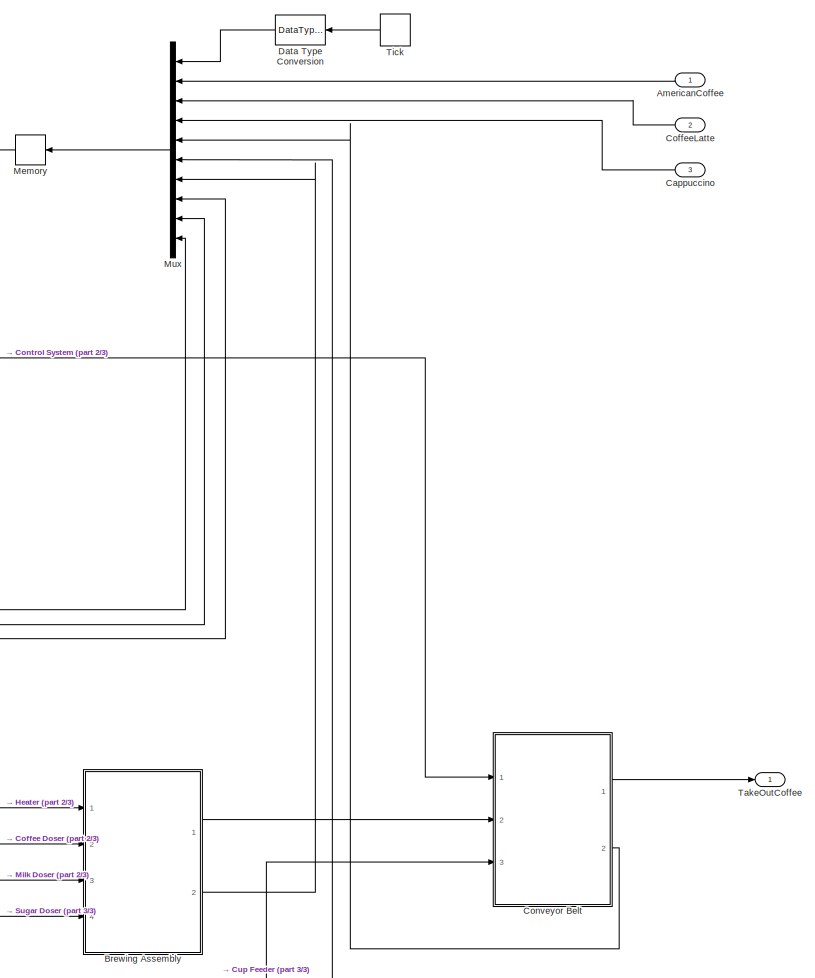
[diagram: root canvas - part 1/3, right side, full height]
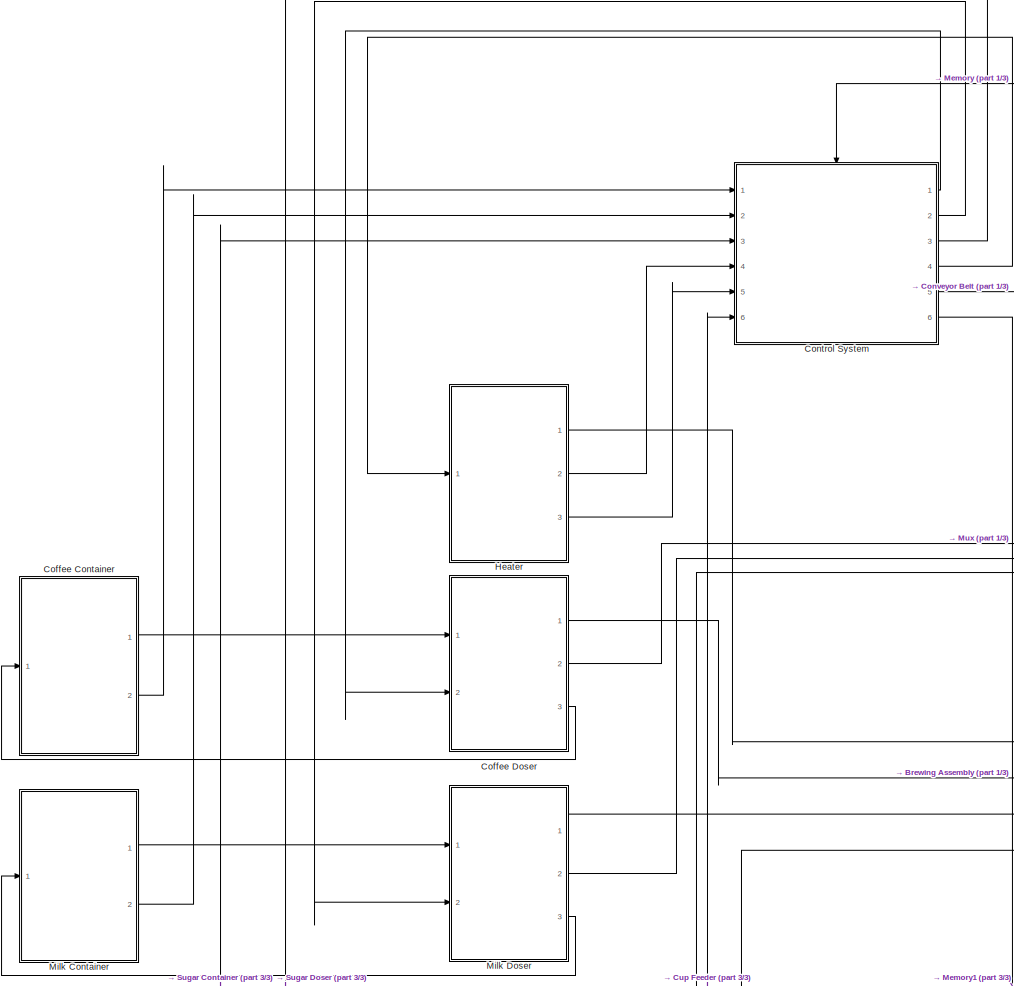
[diagram: root canvas - part 2/3, left side, full height]
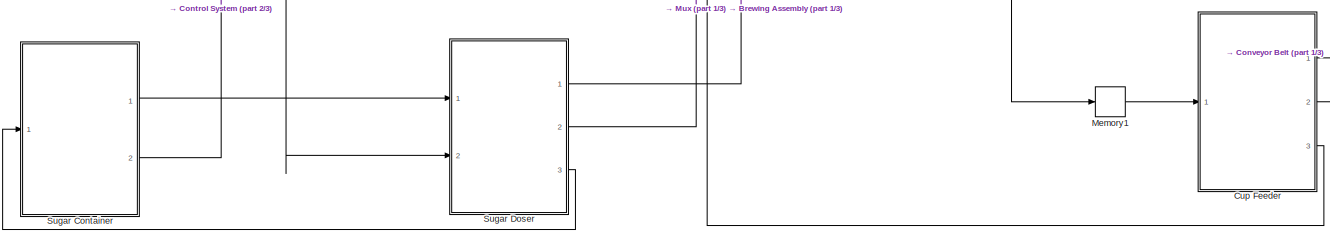
[diagram: root canvas - part 3/3, bottom center region]
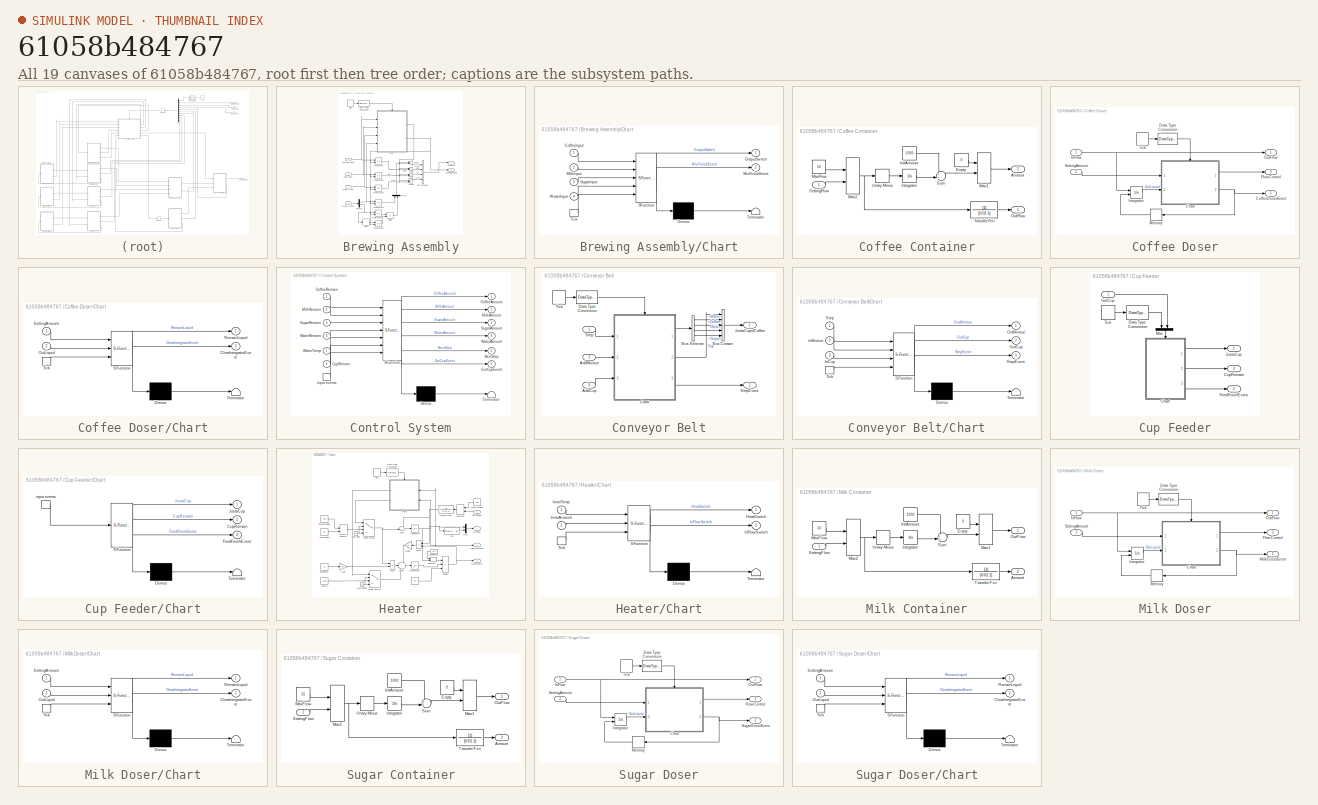
[diagram: thumbnail index - all 19 canvases of the model, root first then tree order]
MODEL slx_61058b484767
KIND model
BLOCK [Inport] AmericanCoffee
  IconDisplay = Port number
BLOCK [SubSystem] Brewing Assembly
  Ports = [4, 2]
  RequestExecContextInheritance = off
BLOCK [BusCreator] Brewing Assembly/Bus Creator
  DisplayOption = bar
  OutDataTypeStr = Bus: Mixtrue
  Ports = [4, 1]
BLOCK [SubSystem] Brewing Assembly/Chart
  ErrorFcn = Stateflow.Translate.translate
  PermitHierarchicalResolution = ParametersOnly
  Ports = [4, 2, 0, 1]
  RequestExecContextInheritance = off
  SFBlockType = Chart
  TreatAsAtomicUnit = on
BLOCK [Demux] Brewing Assembly/Chart/ Demux 
  Outputs = 1
  Ports = [1, 1]
BLOCK [S-Function] Brewing Assembly/Chart/ SFunction 
  EnableBusSupport = on
  FunctionName = sf_sfun
  PortCounts = [5 3]
  Ports = [5, 3]
  Tag = Stateflow S-Function AllinOne2014a 7
BLOCK [Terminator] Brewing Assembly/Chart/ Terminator 
BLOCK [Inport] Brewing Assembly/Chart/CoffeeInput
  IconDisplay = Port number
BLOCK [Inport] Brewing Assembly/Chart/MilkInput
  IconDisplay = Port number
  Port = 2
BLOCK [Outport] Brewing Assembly/Chart/MixFinishEvent
  IconDisplay = Port number
  Port = 2
BLOCK [Outport] Brewing Assembly/Chart/OutputSwitch
  IconDisplay = Port number
BLOCK [Inport] Brewing Assembly/Chart/SugarInput
  IconDisplay = Port number
  Port = 3
BLOCK [TriggerPort] Brewing Assembly/Chart/Tick
  Ports = [0, 1]
  ShowOutputPort = on
  StatesWhenEnabling = held
BLOCK [Inport] Brewing Assembly/Chart/WaterInput
  IconDisplay = Port number
  Port = 4
BLOCK [Inport] Brewing Assembly/Coffee Input
  IconDisplay = Port number
  Port = 2
BLOCK [DataTypeConversion] Brewing Assembly/Data Type Conversion
  OutDataTypeStr = boolean
  RndMeth = Floor
  SaturateOnIntegerOverflow = off
BLOCK [Demux] Brewing Assembly/Demux
  DisplayOption = bar
  Outputs = 2
  Ports = [1, 2]
BLOCK [Product] Brewing Assembly/Divide
  InputSameDT = off
  Inputs = */
  OutDataTypeStr = Inherit: Inherit via internal rule
  Ports = [2, 1]
  RndMeth = Floor
  SaturateOnIntegerOverflow = off
BLOCK [Integrator] Brewing Assembly/Integrator
  ExternalReset = rising
  Ports = [2, 1]
BLOCK [Integrator] Brewing Assembly/Integrator1
  ExternalReset = rising
  Ports = [2, 1]
BLOCK [Integrator] Brewing Assembly/Integrator2
  ExternalReset = rising
  Ports = [2, 1]
BLOCK [Integrator] Brewing Assembly/Integrator3
  ExternalReset = rising
  Ports = [2, 1]
BLOCK [Integrator] Brewing Assembly/Integrator4
  ExternalReset = rising
  Ports = [2, 1]
BLOCK [Integrator] Brewing Assembly/Integrator5
  ExternalReset = rising
  Ports = [2, 1]
BLOCK [Inport] Brewing Assembly/Milk Input
  IconDisplay = Port number
  Port = 3
BLOCK [Outport] Brewing Assembly/MixFinishEvent
  IconDisplay = Port number
  Port = 2
BLOCK [Outport] Brewing Assembly/Mixture
  IconDisplay = Port number
  OutDataTypeStr = Bus: Mixtrue
BLOCK [Product] Brewing Assembly/Multi
  InputSameDT = off
  Inputs = **
  OutDataTypeStr = Inherit: Inherit via internal rule
  Ports = [2, 1]
  RndMeth = Floor
  SaturateOnIntegerOverflow = off
BLOCK [Product] Brewing Assembly/Multi1
  InputSameDT = off
  Inputs = **
  OutDataTypeStr = Inherit: Inherit via internal rule
  Ports = [2, 1]
  RndMeth = Floor
  SaturateOnIntegerOverflow = off
BLOCK [Product] Brewing Assembly/Multi2
  InputSameDT = off
  Inputs = **
  OutDataTypeStr = Inherit: Inherit via internal rule
  Ports = [2, 1]
  RndMeth = Floor
  SaturateOnIntegerOverflow = off
BLOCK [Product] Brewing Assembly/Multi3
  InputSameDT = off
  Inputs = **
  OutDataTypeStr = Inherit: Inherit via internal rule
  Ports = [2, 1]
  RndMeth = Floor
  SaturateOnIntegerOverflow = off
BLOCK [Mux] Brewing Assembly/Mux1
  DisplayOption = bar
  Inputs = 2
  Ports = [2, 1]
BLOCK [Signum] Brewing Assembly/Sign
BLOCK [Inport] Brewing Assembly/Sugar Input
  IconDisplay = Port number
  Port = 4
BLOCK [DiscretePulseGenerator] Brewing Assembly/Tick
  Period = 0.01
  Ports = [0, 1]
  PulseType = Time based
  PulseWidth = 50
BLOCK [Inport] Brewing Assembly/Water Input
  IconDisplay = Port number
BLOCK [Inport] Cappuccino
  IconDisplay = Port number
  Port = 3
BLOCK [SubSystem] Coffee Container
  Ports = [1, 2]
  RequestExecContextInheritance = off
BLOCK [Outport] Coffee Container/Amount
  IconDisplay = Port number
  Port = 2
BLOCK [Constant] Coffee Container/Enpty
  Value = 0
BLOCK [Constant] Coffee Container/InitAmount
  Value = 1000
BLOCK [Integrator] Coffee Container/Integrator
  Ports = [1, 1]
BLOCK [MinMax] Coffee Container/Max1
  Function = max
  InputSameDT = off
  Inputs = 2
  Ports = [2, 1]
  SaturateOnIntegerOverflow = off
BLOCK [MinMax] Coffee Container/Max2
  InputSameDT = off
  Inputs = 2
  OutMin = [0]
  Ports = [2, 1]
  SaturateOnIntegerOverflow = off
BLOCK [Constant] Coffee Container/MaxFlow
  Value = 50
BLOCK [Outport] Coffee Container/OutFlow
  IconDisplay = Port number
BLOCK [Inport] Coffee Container/SettingFlow
  IconDisplay = Port number
BLOCK [Sum] Coffee Container/Sum
  IconShape = round
  InputSameDT = off
  Inputs = ++|
  OutDataTypeStr = Inherit: Inherit via internal rule
  Ports = [2, 1]
  SaturateOnIntegerOverflow = off
BLOCK [TransferFcn] Coffee Container/Transfer Fcn
  Denominator = [0.01 1]
BLOCK [UnaryMinus] Coffee Container/Unary Minus
BLOCK [SubSystem] Coffee Doser
  Ports = [2, 3]
  RequestExecContextInheritance = off
BLOCK [SubSystem] Coffee Doser/Chart
  ErrorFcn = Stateflow.Translate.translate
  PermitHierarchicalResolution = ParametersOnly
  Ports = [2, 2, 0, 1]
  RequestExecContextInheritance = off
  SFBlockType = Chart
  TreatAsAtomicUnit = on
BLOCK [Demux] Coffee Doser/Chart/ Demux 
  Outputs = 1
  Ports = [1, 1]
BLOCK [S-Function] Coffee Doser/Chart/ SFunction 
  EnableBusSupport = on
  FunctionName = sf_sfun
  PortCounts = [3 3]
  Ports = [3, 3]
  Tag = Stateflow S-Function AllinOne2014a 4
BLOCK [Terminator] Coffee Doser/Chart/ Terminator 
BLOCK [Outport] Coffee Doser/Chart/ClearIntegratorEvent
  IconDisplay = Port number
  Port = 2
BLOCK [Inport] Coffee Doser/Chart/OutLiquid
  IconDisplay = Port number
  Port = 2
BLOCK [Outport] Coffee Doser/Chart/RemainLiquid
  IconDisplay = Port number
BLOCK [Inport] Coffee Doser/Chart/SettingAmount
  IconDisplay = Port number
BLOCK [TriggerPort] Coffee Doser/Chart/Tick
  Ports = [0, 1]
  ShowOutputPort = on
  StatesWhenEnabling = held
BLOCK [Outport] Coffee Doser/CoffeeDoserEvent
  IconDisplay = Port number
  Port = 2
BLOCK [DataTypeConversion] Coffee Doser/Data Type Conversion
  OutDataTypeStr = boolean
  RndMeth = Floor
  SaturateOnIntegerOverflow = off
BLOCK [Outport] Coffee Doser/FlowControl
  IconDisplay = Port number
  Port = 3
BLOCK [Inport] Coffee Doser/InFlow
  IconDisplay = Port number
BLOCK [Integrator] Coffee Doser/Integrator
  ExternalReset = rising
  Ports = [2, 1]
BLOCK [Memory] Coffee Doser/Memory
BLOCK [Outport] Coffee Doser/OutFlow
  IconDisplay = Port number
BLOCK [Inport] Coffee Doser/SettingAmount
  IconDisplay = Port number
  Port = 2
BLOCK [DiscretePulseGenerator] Coffee Doser/Tick
  Period = 0.01
  Ports = [0, 1]
  PulseType = Time based
  PulseWidth = 50
BLOCK [Inport] CoffeeLatte
  IconDisplay = Port number
  Port = 2
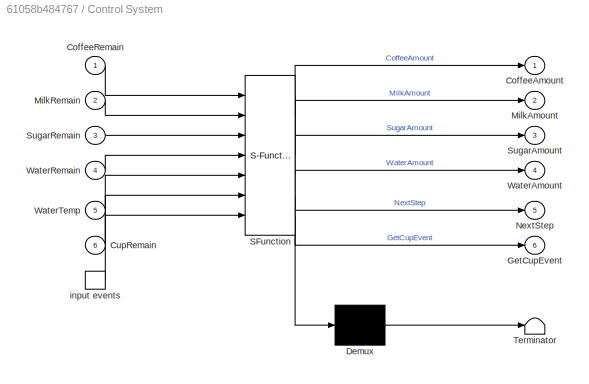
BLOCK [SubSystem] Control System
  ErrorFcn = Stateflow.Translate.translate
  PermitHierarchicalResolution = ParametersOnly
  Ports = [6, 6, 0, 1]
  RequestExecContextInheritance = off
  SFBlockType = Chart
  TreatAsAtomicUnit = on
BLOCK [Demux] Control System/ Demux 
  Outputs = 1
  Ports = [1, 1]
BLOCK [S-Function] Control System/ SFunction 
  EnableBusSupport = on
  FunctionName = sf_sfun
  PortCounts = [7 7]
  Ports = [7, 7]
  Tag = Stateflow S-Function AllinOne2014a 12
BLOCK [Terminator] Control System/ Terminator 
BLOCK [TriggerPort] Control System/ input events 
  Ports = [0, 1]
  ShowOutputPort = on
  StatesWhenEnabling = held
BLOCK [Outport] Control System/CoffeeAmount
  IconDisplay = Port number
BLOCK [Inport] Control System/CoffeeRemain
  IconDisplay = Port number
BLOCK [Inport] Control System/CupRemain
  IconDisplay = Port number
  Port = 6
BLOCK [Outport] Control System/GetCupEvent
  IconDisplay = Port number
  Port = 6
BLOCK [Outport] Control System/MilkAmount
  IconDisplay = Port number
  Port = 2
BLOCK [Inport] Control System/MilkRemain
  IconDisplay = Port number
  Port = 2
BLOCK [Outport] Control System/NextStep
  IconDisplay = Port number
  Port = 5
BLOCK [Outport] Control System/SugarAmount
  IconDisplay = Port number
  Port = 3
BLOCK [Inport] Control System/SugarRemain
  IconDisplay = Port number
  Port = 3
BLOCK [Outport] Control System/WaterAmount
  IconDisplay = Port number
  Port = 4
BLOCK [Inport] Control System/WaterRemain
  IconDisplay = Port number
  Port = 4
BLOCK [Inport] Control System/WaterTemp
  IconDisplay = Port number
  Port = 5
BLOCK [SubSystem] Conveyor Belt
  Ports = [3, 2]
  RequestExecContextInheritance = off
BLOCK [Inport] Conveyor Belt/AddCup
  IconDisplay = Port number
  Port = 3
BLOCK [Inport] Conveyor Belt/AddMixtrue
  IconDisplay = Port number
  Port = 2
BLOCK [BusCreator] Conveyor Belt/Bus Creator
  DisplayOption = bar
  Inputs = 5
  Ports = [5, 1]
BLOCK [BusSelector] Conveyor Belt/Bus Selector
  OutputSignals = Water,Coffee,Milk,Sugar
  Ports = [1, 4]
BLOCK [SubSystem] Conveyor Belt/Chart
  ErrorFcn = Stateflow.Translate.translate
  PermitHierarchicalResolution = ParametersOnly
  Ports = [3, 3, 0, 1]
  RequestExecContextInheritance = off
  SFBlockType = Chart
  TreatAsAtomicUnit = on
BLOCK [Demux] Conveyor Belt/Chart/ Demux 
  Outputs = 1
  Ports = [1, 1]
BLOCK [S-Function] Conveyor Belt/Chart/ SFunction 
  EnableBusSupport = on
  FunctionName = sf_sfun
  PortCounts = [4 4]
  Ports = [4, 4]
  Tag = Stateflow S-Function AllinOne2014a 1
BLOCK [Terminator] Conveyor Belt/Chart/ Terminator 
BLOCK [Inport] Conveyor Belt/Chart/InCup
  IconDisplay = Port number
  Port = 3
BLOCK [Inport] Conveyor Belt/Chart/InMixtrue
  IconDisplay = Port number
  Port = 2
BLOCK [Outport] Conveyor Belt/Chart/OutCup
  IconDisplay = Port number
  Port = 2
BLOCK [Outport] Conveyor Belt/Chart/OutMixtrue
  IconDisplay = Port number
BLOCK [Inport] Conveyor Belt/Chart/Step
  IconDisplay = Port number
BLOCK [Outport] Conveyor Belt/Chart/StepEvent
  IconDisplay = Port number
  Port = 3
BLOCK [TriggerPort] Conveyor Belt/Chart/Tick
  Ports = [0, 1]
  ShowOutputPort = on
  StatesWhenEnabling = held
BLOCK [DataTypeConversion] Conveyor Belt/Data Type Conversion
  OutDataTypeStr = boolean
  RndMeth = Floor
  SaturateOnIntegerOverflow = off
BLOCK [Outport] Conveyor Belt/JustaCupofCoffee
  IconDisplay = Port number
  OutDataTypeStr = Bus: aCupofCoffee
BLOCK [Inport] Conveyor Belt/Step
  IconDisplay = Port number
BLOCK [Outport] Conveyor Belt/StepEvent
  IconDisplay = Port number
  Port = 2
BLOCK [DiscretePulseGenerator] Conveyor Belt/Tick
  Period = 0.01
  Ports = [0, 1]
  PulseType = Time based
  PulseWidth = 50
BLOCK [SubSystem] Cup Feeder
  Ports = [1, 3]
  RequestExecContextInheritance = off
BLOCK [SubSystem] Cup Feeder/Chart
  ErrorFcn = Stateflow.Translate.translate
  PermitHierarchicalResolution = ParametersOnly
  Ports = [0, 3, 0, 1]
  RequestExecContextInheritance = off
  SFBlockType = Chart
  TreatAsAtomicUnit = on
BLOCK [Demux] Cup Feeder/Chart/ Demux 
  Outputs = 1
  Ports = [1, 1]
BLOCK [S-Function] Cup Feeder/Chart/ SFunction 
  EnableBusSupport = on
  FunctionName = sf_sfun
  PortCounts = [1 4]
  Ports = [1, 4]
  Tag = Stateflow S-Function AllinOne2014a 5
BLOCK [Terminator] Cup Feeder/Chart/ Terminator 
BLOCK [TriggerPort] Cup Feeder/Chart/ input events 
  Ports = [0, 1]
  ShowOutputPort = on
  StatesWhenEnabling = held
BLOCK [Outport] Cup Feeder/Chart/CupRemain
  IconDisplay = Port number
  Port = 2
BLOCK [Outport] Cup Feeder/Chart/FeedFinishEvent
  IconDisplay = Port number
  Port = 3
BLOCK [Outport] Cup Feeder/Chart/JustaCup
  IconDisplay = Port number
BLOCK [Outport] Cup Feeder/CupRemain
  IconDisplay = Port number
  Port = 3
BLOCK [DataTypeConversion] Cup Feeder/Data Type Conversion
  OutDataTypeStr = boolean
  RndMeth = Floor
  SaturateOnIntegerOverflow = off
BLOCK [Outport] Cup Feeder/FeedFinishEvent
  IconDisplay = Port number
  Port = 2
BLOCK [Inport] Cup Feeder/GetCup
  IconDisplay = Port number
BLOCK [Outport] Cup Feeder/JustaCup
  IconDisplay = Port number
BLOCK [Mux] Cup Feeder/Mux
  DisplayOption = bar
  Inputs = 2
  Ports = [2, 1]
BLOCK [DiscretePulseGenerator] Cup Feeder/Tick
  Period = 0.01
  Ports = [0, 1]
  PulseType = Time based
  PulseWidth = 50
BLOCK [DataTypeConversion] Data Type Conversion
  OutDataTypeStr = boolean
  RndMeth = Floor
  SaturateOnIntegerOverflow = off
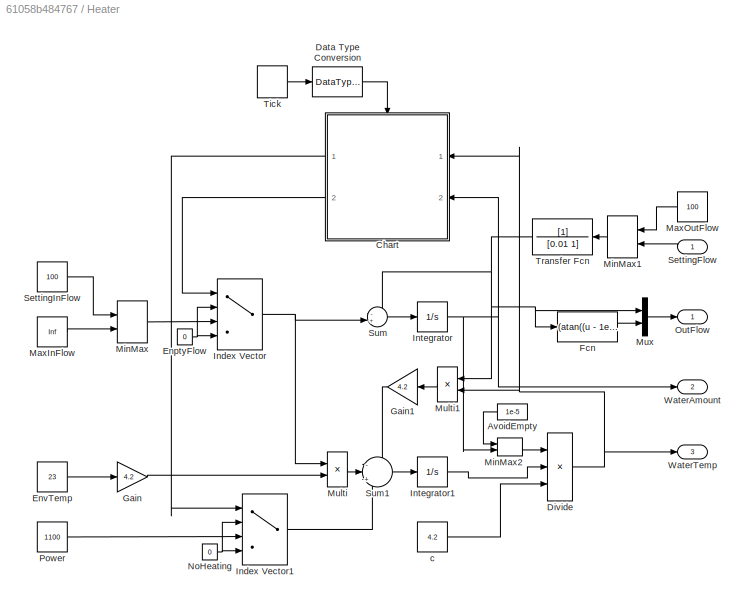
BLOCK [SubSystem] Heater
  Ports = [1, 3]
  RequestExecContextInheritance = off
BLOCK [Constant] Heater/AvoidEmpty
  Value = 1e-5
BLOCK [SubSystem] Heater/Chart
  ErrorFcn = Stateflow.Translate.translate
  PermitHierarchicalResolution = ParametersOnly
  Ports = [2, 2, 0, 1]
  RequestExecContextInheritance = off
  SFBlockType = Chart
  TreatAsAtomicUnit = on
BLOCK [Demux] Heater/Chart/ Demux 
  Outputs = 1
  Ports = [1, 1]
BLOCK [S-Function] Heater/Chart/ SFunction 
  EnableBusSupport = on
  FunctionName = sf_sfun
  PortCounts = [3 3]
  Ports = [3, 3]
  Tag = Stateflow S-Function AllinOne2014a 6
BLOCK [Terminator] Heater/Chart/ Terminator 
BLOCK [Outport] Heater/Chart/HeatSwitch
  IconDisplay = Port number
BLOCK [Outport] Heater/Chart/InFlowSwitch
  IconDisplay = Port number
  Port = 2
BLOCK [Inport] Heater/Chart/InnerAmount
  IconDisplay = Port number
  Port = 2
BLOCK [Inport] Heater/Chart/InnerTemp
  IconDisplay = Port number
BLOCK [TriggerPort] Heater/Chart/Tick
  Ports = [0, 1]
  ShowOutputPort = on
  StatesWhenEnabling = held
BLOCK [DataTypeConversion] Heater/Data Type Conversion
  OutDataTypeStr = boolean
  RndMeth = Floor
  SaturateOnIntegerOverflow = off
BLOCK [Product] Heater/Divide
  InputSameDT = off
  Inputs = /*/
  OutDataTypeStr = Inherit: Inherit via internal rule
  Ports = [3, 1]
  RndMeth = Floor
  SaturateOnIntegerOverflow = off
BLOCK [Constant] Heater/EnptyFlow
  Value = 0
BLOCK [Constant] Heater/EnvTemp
  Value = 23
BLOCK [Fcn] Heater/Fcn
  Expr = (atan((u - 1e-5)*1e8) + pi / 2) / pi * 100
BLOCK [Gain] Heater/Gain
  Gain = 4.2
  OutDataTypeStr = Inherit: Inherit via internal rule
  ParamDataTypeStr = Inherit: Inherit via internal rule
  SaturateOnIntegerOverflow = off
BLOCK [Gain] Heater/Gain1
  Gain = 4.2
  OutDataTypeStr = Inherit: Inherit via internal rule
  ParamDataTypeStr = Inherit: Inherit via internal rule
  SaturateOnIntegerOverflow = off
BLOCK [MultiPortSwitch] Heater/Index Vector
  DataPortForDefault = Additional data port
  DataPortOrder = Zero-based contiguous
  DiagnosticForDefault = None
  InputSameDT = off
  Inputs = 2
  Ports = [4, 1]
  SaturateOnIntegerOverflow = off
  zeroidx = on
BLOCK [MultiPortSwitch] Heater/Index Vector1
  DataPortForDefault = Additional data port
  DataPortOrder = Zero-based contiguous
  DiagnosticForDefault = None
  InputSameDT = off
  Inputs = 2
  Ports = [4, 1]
  SaturateOnIntegerOverflow = off
  zeroidx = on
BLOCK [Integrator] Heater/Integrator
  Ports = [1, 1]
BLOCK [Integrator] Heater/Integrator1
  Ports = [1, 1]
BLOCK [Constant] Heater/MaxInFlow
  Value = Inf
BLOCK [Constant] Heater/MaxOutFlow
  Value = 100
BLOCK [MinMax] Heater/MinMax
  InputSameDT = off
  Inputs = 2
  Ports = [2, 1]
  SaturateOnIntegerOverflow = off
BLOCK [MinMax] Heater/MinMax1
  InputSameDT = off
  Inputs = 2
  Ports = [2, 1]
  SaturateOnIntegerOverflow = off
BLOCK [MinMax] Heater/MinMax2
  Function = max
  InputSameDT = off
  Inputs = 2
  Ports = [2, 1]
  SaturateOnIntegerOverflow = off
BLOCK [Product] Heater/Multi
  InputSameDT = off
  Inputs = **
  OutDataTypeStr = Inherit: Inherit via internal rule
  Ports = [2, 1]
  RndMeth = Floor
  SaturateOnIntegerOverflow = off
BLOCK [Product] Heater/Multi1
  InputSameDT = off
  Inputs = **
  OutDataTypeStr = Inherit: Inherit via internal rule
  Ports = [2, 1]
  RndMeth = Floor
  SaturateOnIntegerOverflow = off
BLOCK [Mux] Heater/Mux
  DisplayOption = bar
  Inputs = 2
  Ports = [2, 1]
BLOCK [Constant] Heater/NoHeating
  Value = 0
BLOCK [Outport] Heater/OutFlow
  IconDisplay = Port number
BLOCK [Constant] Heater/Power
  Value = 1100
BLOCK [Inport] Heater/SettingFlow
  IconDisplay = Port number
BLOCK [Constant] Heater/SettingInFlow
  Value = 100
BLOCK [Sum] Heater/Sum
  IconShape = round
  InputSameDT = off
  Inputs = -+|
  OutDataTypeStr = Inherit: Inherit via internal rule
  Ports = [2, 1]
  SaturateOnIntegerOverflow = off
BLOCK [Sum] Heater/Sum1
  IconShape = round
  InputSameDT = off
  Inputs = -|+|+
  OutDataTypeStr = Inherit: Inherit via internal rule
  Ports = [3, 1]
  SaturateOnIntegerOverflow = off
BLOCK [DiscretePulseGenerator] Heater/Tick
  Period = 0.01
  Ports = [0, 1]
  PulseType = Time based
  PulseWidth = 50
BLOCK [TransferFcn] Heater/Transfer Fcn
  Denominator = [0.01 1]
BLOCK [Outport] Heater/WaterAmount
  IconDisplay = Port number
  Port = 2
BLOCK [Outport] Heater/WaterTemp
  IconDisplay = Port number
  Port = 3
BLOCK [Constant] Heater/c
  Value = 4.2
BLOCK [Memory] Memory
BLOCK [Memory] Memory1
BLOCK [SubSystem] Milk Container
  Ports = [1, 2]
  RequestExecContextInheritance = off
BLOCK [Outport] Milk Container/Amount
  IconDisplay = Port number
  Port = 2
BLOCK [Constant] Milk Container/Enpty
  Value = 0
BLOCK [Constant] Milk Container/InitAmount
  Value = 1000
BLOCK [Integrator] Milk Container/Integrator
  Ports = [1, 1]
BLOCK [MinMax] Milk Container/Max1
  Function = max
  InputSameDT = off
  Inputs = 2
  Ports = [2, 1]
  SaturateOnIntegerOverflow = off
BLOCK [MinMax] Milk Container/Max2
  InputSameDT = off
  Inputs = 2
  OutMin = [0]
  Ports = [2, 1]
  SaturateOnIntegerOverflow = off
BLOCK [Constant] Milk Container/MaxFlow
  Value = 50
BLOCK [Outport] Milk Container/OutFlow
  IconDisplay = Port number
BLOCK [Inport] Milk Container/SettingFlow
  IconDisplay = Port number
BLOCK [Sum] Milk Container/Sum
  IconShape = round
  InputSameDT = off
  Inputs = ++|
  OutDataTypeStr = Inherit: Inherit via internal rule
  Ports = [2, 1]
  SaturateOnIntegerOverflow = off
BLOCK [TransferFcn] Milk Container/Transfer Fcn
  Denominator = [0.01 1]
BLOCK [UnaryMinus] Milk Container/Unary Minus
BLOCK [SubSystem] Milk Doser
  Ports = [2, 3]
  RequestExecContextInheritance = off
BLOCK [SubSystem] Milk Doser/Chart
  ErrorFcn = Stateflow.Translate.translate
  PermitHierarchicalResolution = ParametersOnly
  Ports = [2, 2, 0, 1]
  RequestExecContextInheritance = off
  SFBlockType = Chart
  TreatAsAtomicUnit = on
BLOCK [Demux] Milk Doser/Chart/ Demux 
  Outputs = 1
  Ports = [1, 1]
BLOCK [S-Function] Milk Doser/Chart/ SFunction 
  EnableBusSupport = on
  FunctionName = sf_sfun
  PortCounts = [3 3]
  Ports = [3, 3]
  Tag = Stateflow S-Function AllinOne2014a 2
BLOCK [Terminator] Milk Doser/Chart/ Terminator 
BLOCK [Outport] Milk Doser/Chart/ClearIntegratorEvent
  IconDisplay = Port number
  Port = 2
BLOCK [Inport] Milk Doser/Chart/OutLiquid
  IconDisplay = Port number
  Port = 2
BLOCK [Outport] Milk Doser/Chart/RemainLiquid
  IconDisplay = Port number
BLOCK [Inport] Milk Doser/Chart/SettingAmount
  IconDisplay = Port number
BLOCK [TriggerPort] Milk Doser/Chart/Tick
  Ports = [0, 1]
  ShowOutputPort = on
  StatesWhenEnabling = held
BLOCK [DataTypeConversion] Milk Doser/Data Type Conversion
  OutDataTypeStr = boolean
  RndMeth = Floor
  SaturateOnIntegerOverflow = off
BLOCK [Outport] Milk Doser/FlowControl
  IconDisplay = Port number
  Port = 3
BLOCK [Inport] Milk Doser/InFlow
  IconDisplay = Port number
BLOCK [Integrator] Milk Doser/Integrator
  ExternalReset = rising
  Ports = [2, 1]
BLOCK [Memory] Milk Doser/Memory
BLOCK [Outport] Milk Doser/MilkDoserEvent
  IconDisplay = Port number
  Port = 2
BLOCK [Outport] Milk Doser/OutFlow
  IconDisplay = Port number
BLOCK [Inport] Milk Doser/SettingAmount
  IconDisplay = Port number
  Port = 2
BLOCK [DiscretePulseGenerator] Milk Doser/Tick
  Period = 0.01
  Ports = [0, 1]
  PulseType = Time based
  PulseWidth = 50
BLOCK [Mux] Mux
  DisplayOption = bar
  Inputs = 10
  Ports = [10, 1]
BLOCK [SubSystem] Sugar Container
  Ports = [1, 2]
  RequestExecContextInheritance = off
BLOCK [Outport] Sugar Container/Amount
  IconDisplay = Port number
  Port = 2
BLOCK [Constant] Sugar Container/Enpty
  Value = 0
BLOCK [Constant] Sugar Container/InitAmount
  Value = 1000
BLOCK [Integrator] Sugar Container/Integrator
  Ports = [1, 1]
BLOCK [MinMax] Sugar Container/Max1
  Function = max
  InputSameDT = off
  Inputs = 2
  Ports = [2, 1]
  SaturateOnIntegerOverflow = off
BLOCK [MinMax] Sugar Container/Max2
  InputSameDT = off
  Inputs = 2
  OutMin = [0]
  Ports = [2, 1]
  SaturateOnIntegerOverflow = off
BLOCK [Constant] Sugar Container/MaxFlow
  Value = 50
BLOCK [Outport] Sugar Container/OutFlow
  IconDisplay = Port number
BLOCK [Inport] Sugar Container/SettingFlow
  IconDisplay = Port number
BLOCK [Sum] Sugar Container/Sum
  IconShape = round
  InputSameDT = off
  Inputs = ++|
  OutDataTypeStr = Inherit: Inherit via internal rule
  Ports = [2, 1]
  SaturateOnIntegerOverflow = off
BLOCK [TransferFcn] Sugar Container/Transfer Fcn
  Denominator = [0.01 1]
BLOCK [UnaryMinus] Sugar Container/Unary Minus
BLOCK [SubSystem] Sugar Doser
  Ports = [2, 3]
  RequestExecContextInheritance = off
BLOCK [SubSystem] Sugar Doser/Chart
  ErrorFcn = Stateflow.Translate.translate
  PermitHierarchicalResolution = ParametersOnly
  Ports = [2, 2, 0, 1]
  RequestExecContextInheritance = off
  SFBlockType = Chart
  TreatAsAtomicUnit = on
BLOCK [Demux] Sugar Doser/Chart/ Demux 
  Outputs = 1
  Ports = [1, 1]
BLOCK [S-Function] Sugar Doser/Chart/ SFunction 
  EnableBusSupport = on
  FunctionName = sf_sfun
  PortCounts = [3 3]
  Ports = [3, 3]
  Tag = Stateflow S-Function AllinOne2014a 3
BLOCK [Terminator] Sugar Doser/Chart/ Terminator 
BLOCK [Outport] Sugar Doser/Chart/ClearIntegratorEvent
  IconDisplay = Port number
  Port = 2
BLOCK [Inport] Sugar Doser/Chart/OutLiquid
  IconDisplay = Port number
  Port = 2
BLOCK [Outport] Sugar Doser/Chart/RemainLiquid
  IconDisplay = Port number
BLOCK [Inport] Sugar Doser/Chart/SettingAmount
  IconDisplay = Port number
BLOCK [TriggerPort] Sugar Doser/Chart/Tick
  Ports = [0, 1]
  ShowOutputPort = on
  StatesWhenEnabling = held
BLOCK [DataTypeConversion] Sugar Doser/Data Type Conversion
  OutDataTypeStr = boolean
  RndMeth = Floor
  SaturateOnIntegerOverflow = off
BLOCK [Outport] Sugar Doser/FlowControl
  IconDisplay = Port number
  Port = 3
BLOCK [Inport] Sugar Doser/InFlow
  IconDisplay = Port number
BLOCK [Integrator] Sugar Doser/Integrator
  ExternalReset = rising
  Ports = [2, 1]
BLOCK [Memory] Sugar Doser/Memory
BLOCK [Outport] Sugar Doser/OutFlow
  IconDisplay = Port number
BLOCK [Inport] Sugar Doser/SettingAmount
  IconDisplay = Port number
  Port = 2
BLOCK [Outport] Sugar Doser/SugarDoserEvent
  IconDisplay = Port number
  Port = 2
BLOCK [DiscretePulseGenerator] Sugar Doser/Tick
  Period = 0.01
  Ports = [0, 1]
  PulseType = Time based
  PulseWidth = 50
BLOCK [Outport] TakeOutCoffee
  IconDisplay = Port number
BLOCK [DiscretePulseGenerator] Tick
  Period = 0.01
  Ports = [0, 1]
  PulseType = Time based
  PulseWidth = 50
LINE AmericanCoffee:1 -> Mux:2
LINE Brewing Assembly/Bus Creator:1 -> Brewing Assembly/Mixture:1
NET Brewing Assembly/Chart:1 -> Brewing Assembly/Multi1:1, Brewing Assembly/Multi2:1, Brewing Assembly/Multi3:1, Brewing Assembly/Multi:1
NET Brewing Assembly/Chart:2 -> Brewing Assembly/Integrator1:2, Brewing Assembly/Integrator2:2, Brewing Assembly/Integrator3:2, Brewing Assembly/Integrator4:2, Brewing Assembly/Integrator5:2, Brewing Assembly/Integrator:2, Brewing Assembly/MixFinishEvent:1
NET Brewing Assembly/Coffee Input:1 -> Brewing Assembly/Chart:1, Brewing Assembly/Integrator:1
LINE Brewing Assembly/Data Type Conversion:1 -> Brewing Assembly/Chart:trigger
NET Brewing Assembly/Demux:1 -> Brewing Assembly/Chart:4, Brewing Assembly/Integrator3:1
NET Brewing Assembly/Demux:2 -> Brewing Assembly/Integrator4:1, Brewing Assembly/Sign:1
LINE Brewing Assembly/Divide:1 -> Brewing Assembly/Mux1:2
LINE Brewing Assembly/Integrator1:1 -> Brewing Assembly/Multi2:2
LINE Brewing Assembly/Integrator2:1 -> Brewing Assembly/Multi3:2
LINE Brewing Assembly/Integrator3:1 -> Brewing Assembly/Mux1:1
LINE Brewing Assembly/Integrator4:1 -> Brewing Assembly/Divide:1
LINE Brewing Assembly/Integrator5:1 -> Brewing Assembly/Divide:2
LINE Brewing Assembly/Integrator:1 -> Brewing Assembly/Multi1:2
NET Brewing Assembly/Milk Input:1 -> Brewing Assembly/Chart:2, Brewing Assembly/Integrator1:1
LINE Brewing Assembly/Multi1:1 -> Brewing Assembly/Bus Creator:2
LINE Brewing Assembly/Multi2:1 -> Brewing Assembly/Bus Creator:3
LINE Brewing Assembly/Multi3:1 -> Brewing Assembly/Bus Creator:4
LINE Brewing Assembly/Multi:1 -> Brewing Assembly/Bus Creator:1
LINE Brewing Assembly/Mux1:1 -> Brewing Assembly/Multi:2
LINE Brewing Assembly/Sign:1 -> Brewing Assembly/Integrator5:1
NET Brewing Assembly/Sugar Input:1 -> Brewing Assembly/Chart:3, Brewing Assembly/Integrator2:1
LINE Brewing Assembly/Tick:1 -> Brewing Assembly/Data Type Conversion:1
LINE Brewing Assembly/Water Input:1 -> Brewing Assembly/Demux:1
LINE Brewing Assembly:1 -> Conveyor Belt:2
LINE Brewing Assembly:2 -> Mux:7
LINE Cappuccino:1 -> Mux:4
LINE Coffee Container/Enpty:1 -> Coffee Container/Max1:1
LINE Coffee Container/InitAmount:1 -> Coffee Container/Sum:1
LINE Coffee Container/Integrator:1 -> Coffee Container/Sum:2
LINE Coffee Container/Max1:1 -> Coffee Container/Amount:1
NET Coffee Container/Max2:1 -> Coffee Container/Transfer Fcn:1, Coffee Container/Unary Minus:1
LINE Coffee Container/MaxFlow:1 -> Coffee Container/Max2:1
LINE Coffee Container/SettingFlow:1 -> Coffee Container/Max2:2
LINE Coffee Container/Sum:1 -> Coffee Container/Max1:2
LINE Coffee Container/Transfer Fcn:1 -> Coffee Container/OutFlow:1
LINE Coffee Container/Unary Minus:1 -> Coffee Container/Integrator:1
LINE Coffee Container:1 -> Coffee Doser:1
LINE Coffee Container:2 -> Control System:1
LINE Coffee Doser/Chart:1 -> Coffee Doser/FlowControl:1
NET Coffee Doser/Chart:2 -> Coffee Doser/CoffeeDoserEvent:1, Coffee Doser/Memory:1
LINE Coffee Doser/Data Type Conversion:1 -> Coffee Doser/Chart:trigger
NET Coffee Doser/InFlow:1 -> Coffee Doser/Integrator:1, Coffee Doser/OutFlow:1
LINE Coffee Doser/Integrator:1 -> Coffee Doser/Chart:2
LINE Coffee Doser/Memory:1 -> Coffee Doser/Integrator:2
LINE Coffee Doser/SettingAmount:1 -> Coffee Doser/Chart:1
LINE Coffee Doser/Tick:1 -> Coffee Doser/Data Type Conversion:1
LINE Coffee Doser:1 -> Brewing Assembly:2
LINE Coffee Doser:2 -> Mux:10
LINE Coffee Doser:3 -> Coffee Container:1
LINE CoffeeLatte:1 -> Mux:3
LINE Control System:1 -> Coffee Doser:2
LINE Control System:2 -> Milk Doser:2
LINE Control System:3 -> Sugar Doser:2
LINE Control System:4 -> Heater:1
LINE Control System:5 -> Conveyor Belt:1
LINE Control System:6 -> Memory1:1
LINE Conveyor Belt/AddCup:1 -> Conveyor Belt/Chart:3
LINE Conveyor Belt/AddMixtrue:1 -> Conveyor Belt/Chart:2
LINE Conveyor Belt/Bus Creator:1 -> Conveyor Belt/JustaCupofCoffee:1
LINE Conveyor Belt/Bus Selector:1 -> Conveyor Belt/Bus Creator:2
LINE Conveyor Belt/Bus Selector:2 -> Conveyor Belt/Bus Creator:3
LINE Conveyor Belt/Bus Selector:3 -> Conveyor Belt/Bus Creator:4
LINE Conveyor Belt/Bus Selector:4 -> Conveyor Belt/Bus Creator:5
LINE Conveyor Belt/Chart:1 -> Conveyor Belt/Bus Selector:1
LINE Conveyor Belt/Chart:2 -> Conveyor Belt/Bus Creator:1
LINE Conveyor Belt/Chart:3 -> Conveyor Belt/StepEvent:1
LINE Conveyor Belt/Data Type Conversion:1 -> Conveyor Belt/Chart:trigger
LINE Conveyor Belt/Step:1 -> Conveyor Belt/Chart:1
LINE Conveyor Belt/Tick:1 -> Conveyor Belt/Data Type Conversion:1
LINE Conveyor Belt:1 -> TakeOutCoffee:1
LINE Conveyor Belt:2 -> Mux:5
LINE Cup Feeder/Chart:1 -> Cup Feeder/JustaCup:1
LINE Cup Feeder/Chart:2 -> Cup Feeder/CupRemain:1
LINE Cup Feeder/Chart:3 -> Cup Feeder/FeedFinishEvent:1
LINE Cup Feeder/Data Type Conversion:1 -> Cup Feeder/Mux:1
LINE Cup Feeder/GetCup:1 -> Cup Feeder/Mux:2
LINE Cup Feeder/Mux:1 -> Cup Feeder/Chart:trigger
LINE Cup Feeder/Tick:1 -> Cup Feeder/Data Type Conversion:1
LINE Cup Feeder:1 -> Conveyor Belt:3
LINE Cup Feeder:2 -> Mux:6
LINE Cup Feeder:3 -> Control System:6
LINE Data Type Conversion:1 -> Mux:1
LINE Heater/AvoidEmpty:1 -> Heater/MinMax2:1
LINE Heater/Chart:1 -> Heater/Index Vector1:1
LINE Heater/Chart:2 -> Heater/Index Vector:1
LINE Heater/Data Type Conversion:1 -> Heater/Chart:trigger
NET Heater/Divide:1 -> Heater/Chart:1, Heater/Multi1:2, Heater/WaterTemp:1
NET Heater/EnptyFlow:1 -> Heater/Index Vector:2, Heater/Index Vector:4
LINE Heater/EnvTemp:1 -> Heater/Gain:1
LINE Heater/Fcn:1 -> Heater/Mux:2
LINE Heater/Gain1:1 -> Heater/Sum1:1
LINE Heater/Gain:1 -> Heater/Multi:2
LINE Heater/Index Vector1:1 -> Heater/Sum1:3
NET Heater/Index Vector:1 -> Heater/Multi:1, Heater/Sum:2
LINE Heater/Integrator1:1 -> Heater/Divide:2
NET Heater/Integrator:1 -> Heater/Chart:2, Heater/MinMax2:2, Heater/WaterAmount:1
LINE Heater/MaxInFlow:1 -> Heater/MinMax:2
LINE Heater/MaxOutFlow:1 -> Heater/MinMax1:1
LINE Heater/MinMax1:1 -> Heater/Transfer Fcn:1
LINE Heater/MinMax2:1 -> Heater/Divide:1
LINE Heater/MinMax:1 -> Heater/Index Vector:3
LINE Heater/Multi1:1 -> Heater/Gain1:1
LINE Heater/Multi:1 -> Heater/Sum1:2
LINE Heater/Mux:1 -> Heater/OutFlow:1
NET Heater/NoHeating:1 -> Heater/Index Vector1:2, Heater/Index Vector1:4
LINE Heater/Power:1 -> Heater/Index Vector1:3
LINE Heater/SettingFlow:1 -> Heater/MinMax1:2
LINE Heater/SettingInFlow:1 -> Heater/MinMax:1
LINE Heater/Sum1:1 -> Heater/Integrator1:1
LINE Heater/Sum:1 -> Heater/Integrator:1
LINE Heater/Tick:1 -> Heater/Data Type Conversion:1
NET Heater/Transfer Fcn:1 -> Heater/Fcn:1, Heater/Multi1:1, Heater/Mux:1, Heater/Sum:1
LINE Heater/c:1 -> Heater/Divide:3
LINE Heater:1 -> Brewing Assembly:1
LINE Heater:2 -> Control System:4
LINE Heater:3 -> Control System:5
LINE Memory1:1 -> Cup Feeder:1
LINE Memory:1 -> Control System:trigger
LINE Milk Container/Enpty:1 -> Milk Container/Max1:1
LINE Milk Container/InitAmount:1 -> Milk Container/Sum:1
LINE Milk Container/Integrator:1 -> Milk Container/Sum:2
LINE Milk Container/Max1:1 -> Milk Container/OutFlow:1
NET Milk Container/Max2:1 -> Milk Container/Transfer Fcn:1, Milk Container/Unary Minus:1
LINE Milk Container/MaxFlow:1 -> Milk Container/Max2:1
LINE Milk Container/SettingFlow:1 -> Milk Container/Max2:2
LINE Milk Container/Sum:1 -> Milk Container/Max1:2
LINE Milk Container/Transfer Fcn:1 -> Milk Container/Amount:1
LINE Milk Container/Unary Minus:1 -> Milk Container/Integrator:1
LINE Milk Container:1 -> Milk Doser:1
LINE Milk Container:2 -> Control System:2
LINE Milk Doser/Chart:1 -> Milk Doser/FlowControl:1
NET Milk Doser/Chart:2 -> Milk Doser/Memory:1, Milk Doser/MilkDoserEvent:1
LINE Milk Doser/Data Type Conversion:1 -> Milk Doser/Chart:trigger
NET Milk Doser/InFlow:1 -> Milk Doser/Integrator:1, Milk Doser/OutFlow:1
LINE Milk Doser/Integrator:1 -> Milk Doser/Chart:2
LINE Milk Doser/Memory:1 -> Milk Doser/Integrator:2
LINE Milk Doser/SettingAmount:1 -> Milk Doser/Chart:1
LINE Milk Doser/Tick:1 -> Milk Doser/Data Type Conversion:1
LINE Milk Doser:1 -> Brewing Assembly:3
LINE Milk Doser:2 -> Mux:9
LINE Milk Doser:3 -> Milk Container:1
LINE Mux:1 -> Memory:1
LINE Sugar Container/Enpty:1 -> Sugar Container/Max1:1
LINE Sugar Container/InitAmount:1 -> Sugar Container/Sum:1
LINE Sugar Container/Integrator:1 -> Sugar Container/Sum:2
LINE Sugar Container/Max1:1 -> Sugar Container/OutFlow:1
NET Sugar Container/Max2:1 -> Sugar Container/Transfer Fcn:1, Sugar Container/Unary Minus:1
LINE Sugar Container/MaxFlow:1 -> Sugar Container/Max2:1
LINE Sugar Container/SettingFlow:1 -> Sugar Container/Max2:2
LINE Sugar Container/Sum:1 -> Sugar Container/Max1:2
LINE Sugar Container/Transfer Fcn:1 -> Sugar Container/Amount:1
LINE Sugar Container/Unary Minus:1 -> Sugar Container/Integrator:1
LINE Sugar Container:1 -> Sugar Doser:1
LINE Sugar Container:2 -> Control System:3
LINE Sugar Doser/Chart:1 -> Sugar Doser/FlowControl:1
NET Sugar Doser/Chart:2 -> Sugar Doser/Memory:1, Sugar Doser/SugarDoserEvent:1
LINE Sugar Doser/Data Type Conversion:1 -> Sugar Doser/Chart:trigger
NET Sugar Doser/InFlow:1 -> Sugar Doser/Integrator:1, Sugar Doser/OutFlow:1
LINE Sugar Doser/Integrator:1 -> Sugar Doser/Chart:2
LINE Sugar Doser/Memory:1 -> Sugar Doser/Integrator:2
LINE Sugar Doser/SettingAmount:1 -> Sugar Doser/Chart:1
LINE Sugar Doser/Tick:1 -> Sugar Doser/Data Type Conversion:1
LINE Sugar Doser:1 -> Brewing Assembly:4
LINE Sugar Doser:2 -> Mux:8
LINE Sugar Doser:3 -> Sugar Container:1
LINE Tick:1 -> Data Type Conversion:1
note: NET lines group one-source signal fan-out (src -> all destinations, sorted); 1:1 wires keep LINE
